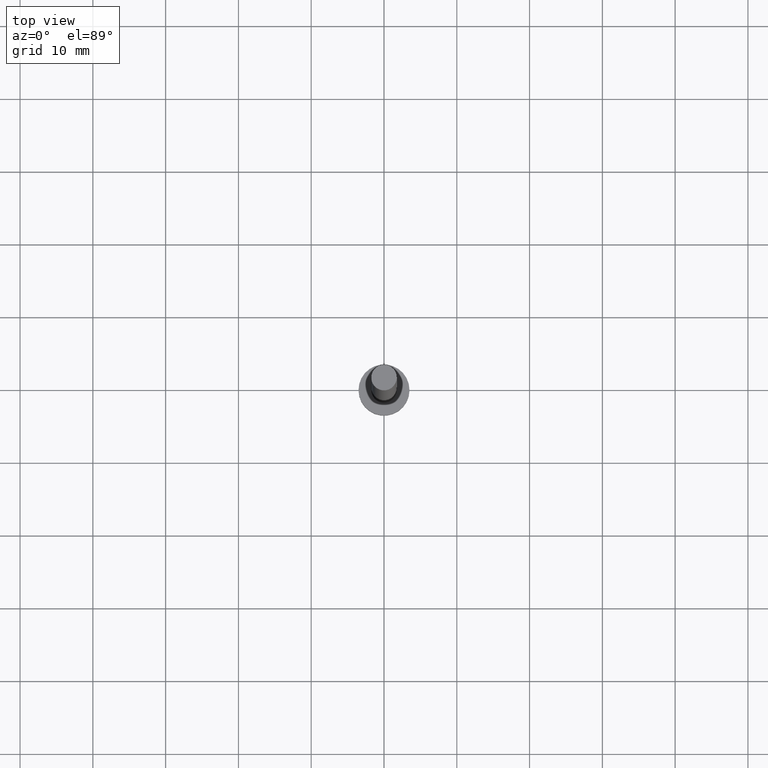
[diagram: clean part render]
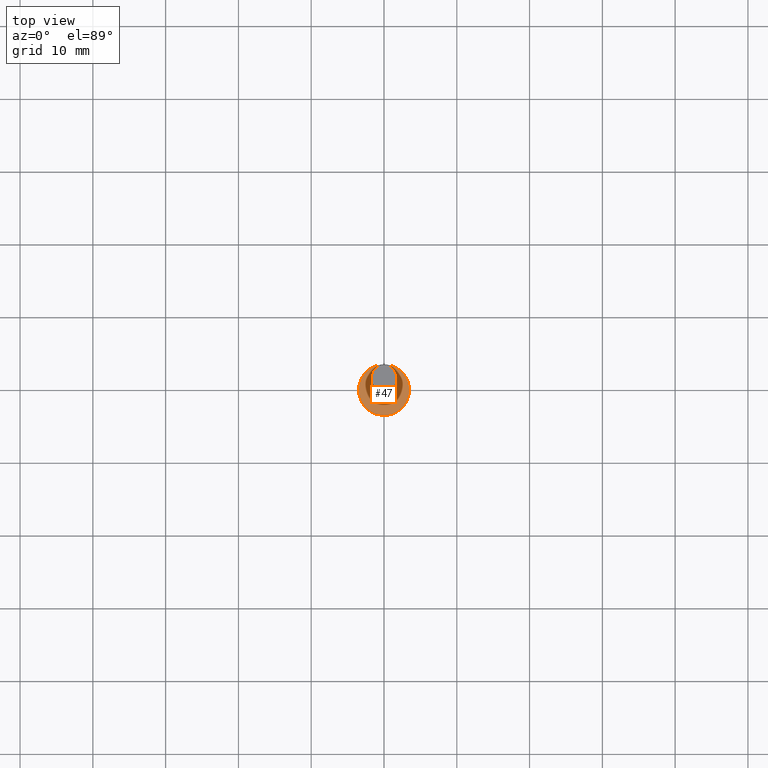
[diagram: same view with one face highlighted and labeled with its STEP entity id]
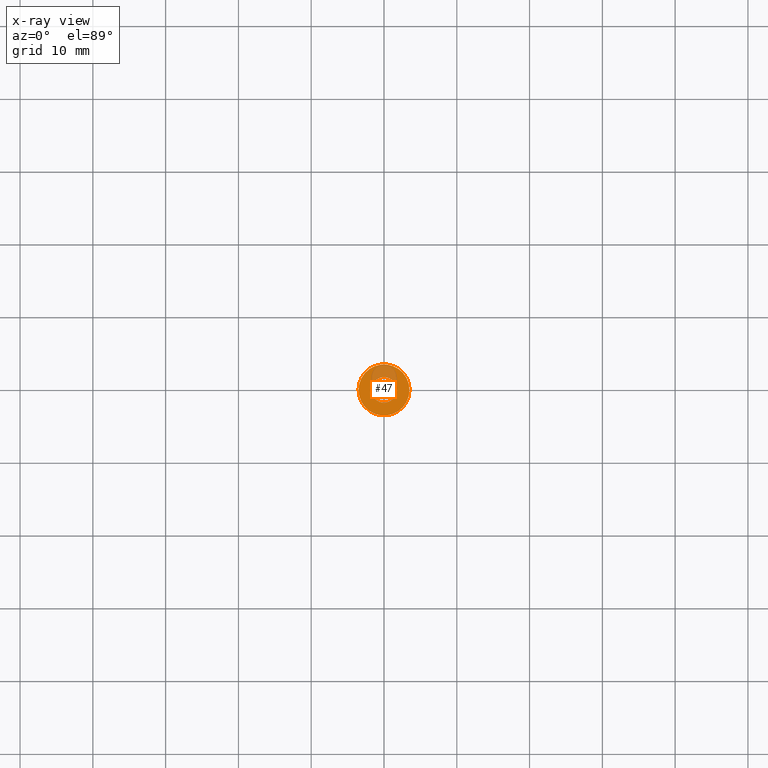
[diagram: x-ray of the same camera — body ghosted, the highlighted face saturated]
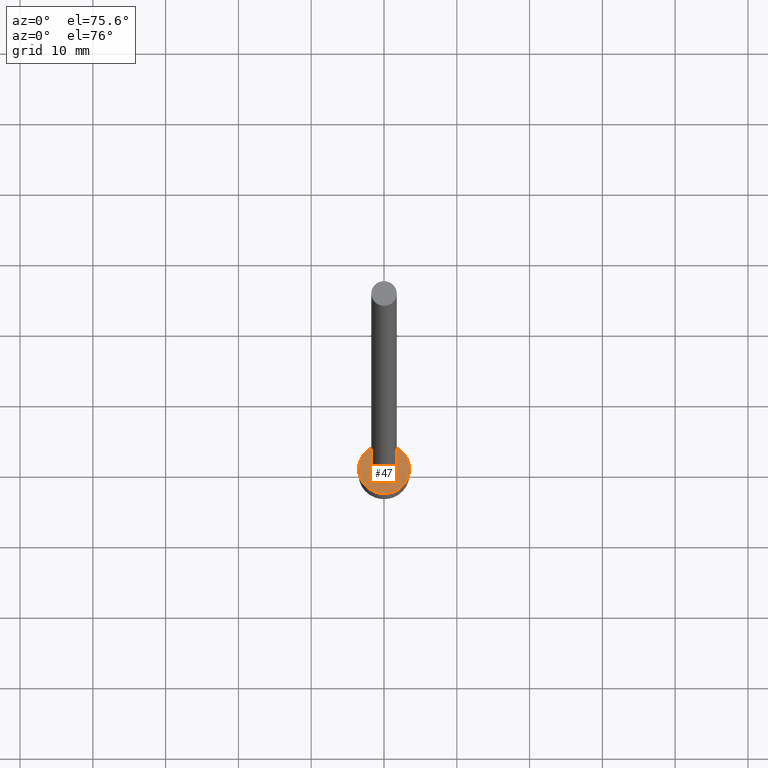
[diagram: same view with one face highlighted and labeled with its STEP entity id]
A machine part, top view. The second image highlights one B-rep face of the part: STEP entity #47.
The next image is the same camera in x-ray: the body ghosted, the highlighted face saturated — about 21% of this face is hidden behind the body in this view.
A second angle (auxiliary view) of the same face is appended — the face is thin or edge-on in the first view.
In plain terms, the highlighted planar face has unit normal (0, 0, 1).
Its self-contained STEP definition (entity closure, byte-faithful):
#10 = CARTESIAN_POINT ( 'NONE',  ( 0.000000000000000000, 0.000000000000000000, 3.000000000000000000 ) ) ;
#20 = DIRECTION ( 'NONE',  ( 0.000000000000000000, 0.000000000000000000, 1.000000000000000000 ) ) ;
#23 = AXIS2_PLACEMENT_3D ( 'NONE', #149, #20, #109 ) ;
#26 = ORIENTED_EDGE ( 'NONE', *, *, #206, .T. ) ;
#33 = CARTESIAN_POINT ( 'NONE',  ( 1.750000000000000000, 2.143131898507867804E-16, 3.000000000000000000 ) ) ;
#42 = DIRECTION ( 'NONE',  ( 1.000000000000000000, 0.000000000000000000, -0.000000000000000000 ) ) ;
#47 = ADVANCED_FACE ( 'NONE', ( #113, #81 ), #193, .T. ) ;
#48 = ORIENTED_EDGE ( 'NONE', *, *, #224, .F. ) ;
#51 = CARTESIAN_POINT ( 'NONE',  ( -1.750000000000000000, 0.000000000000000000, 3.000000000000000000 ) ) ;
#61 = EDGE_LOOP ( 'NONE', ( #147, #48 ) ) ;
#64 = CIRCLE ( 'NONE', #23, 1.750000000000000000 ) ;
#68 = EDGE_CURVE ( 'NONE', #192, #92, #199, .T. ) ;
#81 = FACE_OUTER_BOUND ( 'NONE', #159, .T. ) ;
#87 = CIRCLE ( 'NONE', #134, 3.500000000000000000 ) ;
#90 = DIRECTION ( 'NONE',  ( 0.000000000000000000, 0.000000000000000000, 1.000000000000000000 ) ) ;
#92 = VERTEX_POINT ( 'NONE', #33 ) ;
#106 = DIRECTION ( 'NONE',  ( 0.000000000000000000, 0.000000000000000000, 1.000000000000000000 ) ) ;
#108 = DIRECTION ( 'NONE',  ( 1.000000000000000000, 0.000000000000000000, 0.000000000000000000 ) ) ;
#109 = DIRECTION ( 'NONE',  ( 1.000000000000000000, 0.000000000000000000, 0.000000000000000000 ) ) ;
#113 = FACE_BOUND ( 'NONE', #61, .T. ) ;
#116 = AXIS2_PLACEMENT_3D ( 'NONE', #129, #90, #108 ) ;
#126 = AXIS2_PLACEMENT_3D ( 'NONE', #171, #250, #42 ) ;
#129 = CARTESIAN_POINT ( 'NONE',  ( 0.000000000000000000, 0.000000000000000000, 3.000000000000000000 ) ) ;
#130 = DIRECTION ( 'NONE',  ( 0.000000000000000000, 0.000000000000000000, 1.000000000000000000 ) ) ;
#134 = AXIS2_PLACEMENT_3D ( 'NONE', #10, #130, #137 ) ;
#137 = DIRECTION ( 'NONE',  ( 1.000000000000000000, 0.000000000000000000, 0.000000000000000000 ) ) ;
#142 = CARTESIAN_POINT ( 'NONE',  ( 0.000000000000000000, 0.000000000000000000, 3.000000000000000000 ) ) ;
#147 = ORIENTED_EDGE ( 'NONE', *, *, #68, .F. ) ;
#149 = CARTESIAN_POINT ( 'NONE',  ( 0.000000000000000000, 0.000000000000000000, 3.000000000000000000 ) ) ;
#151 = CARTESIAN_POINT ( 'NONE',  ( 3.500000000000000000, 4.286263797015736595E-16, 3.000000000000000000 ) ) ;
#157 = ORIENTED_EDGE ( 'NONE', *, *, #189, .T. ) ;
#159 = EDGE_LOOP ( 'NONE', ( #157, #26 ) ) ;
#171 = CARTESIAN_POINT ( 'NONE',  ( 0.000000000000000000, 0.000000000000000000, 3.000000000000000000 ) ) ;
#189 = EDGE_CURVE ( 'NONE', #209, #233, #87, .T. ) ;
#190 = CARTESIAN_POINT ( 'NONE',  ( -3.500000000000000000, 0.000000000000000000, 3.000000000000000000 ) ) ;
#192 = VERTEX_POINT ( 'NONE', #51 ) ;
#193 = PLANE ( 'NONE',  #126 ) ;
#196 = DIRECTION ( 'NONE',  ( 1.000000000000000000, 0.000000000000000000, 0.000000000000000000 ) ) ;
#199 = CIRCLE ( 'NONE', #231, 1.750000000000000000 ) ;
#206 = EDGE_CURVE ( 'NONE', #233, #209, #253, .T. ) ;
#209 = VERTEX_POINT ( 'NONE', #190 ) ;
#224 = EDGE_CURVE ( 'NONE', #92, #192, #64, .T. ) ;
#231 = AXIS2_PLACEMENT_3D ( 'NONE', #142, #106, #196 ) ;
#233 = VERTEX_POINT ( 'NONE', #151 ) ;
#250 = DIRECTION ( 'NONE',  ( 0.000000000000000000, 0.000000000000000000, 1.000000000000000000 ) ) ;
#253 = CIRCLE ( 'NONE', #116, 3.500000000000000000 ) ;